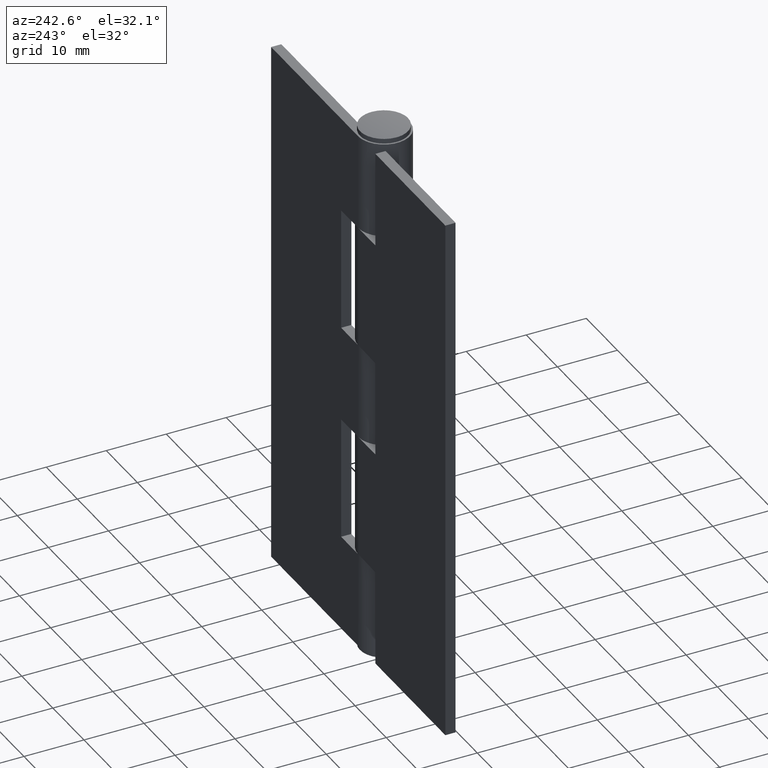
[diagram: clean part render]
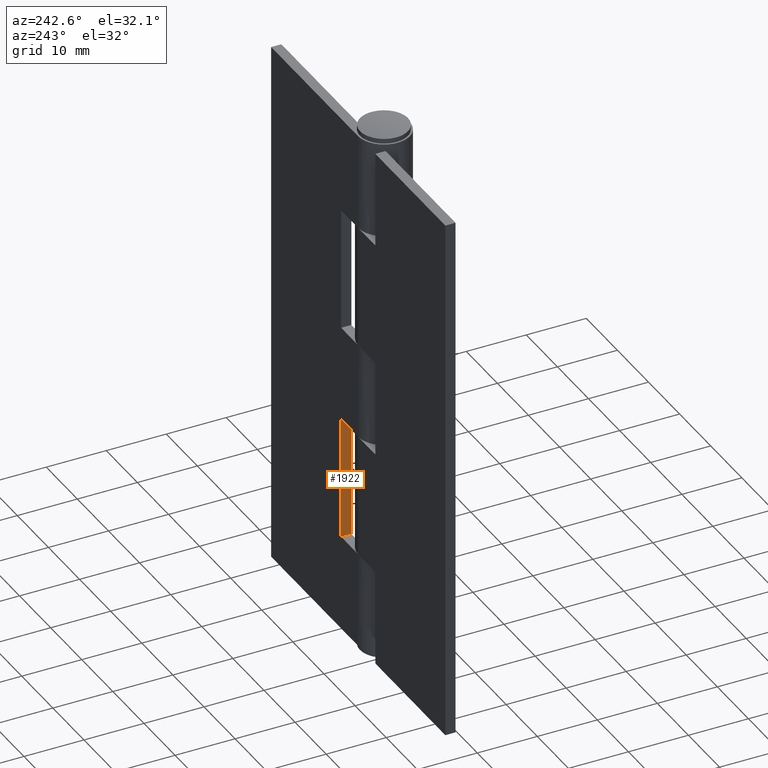
[diagram: same view with one face highlighted and labeled with its STEP entity id]
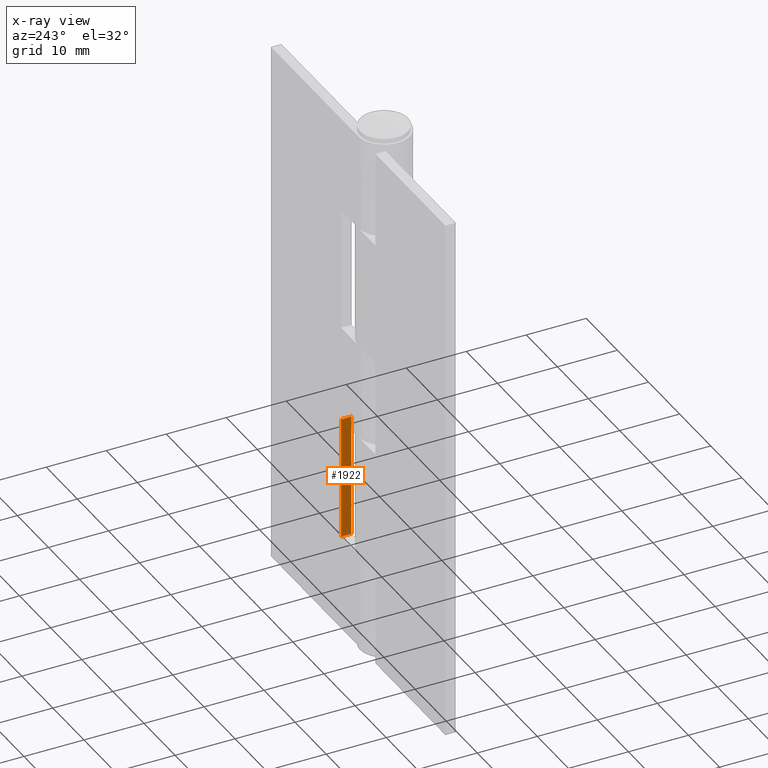
[diagram: x-ray of the same camera — body ghosted, the highlighted face saturated]
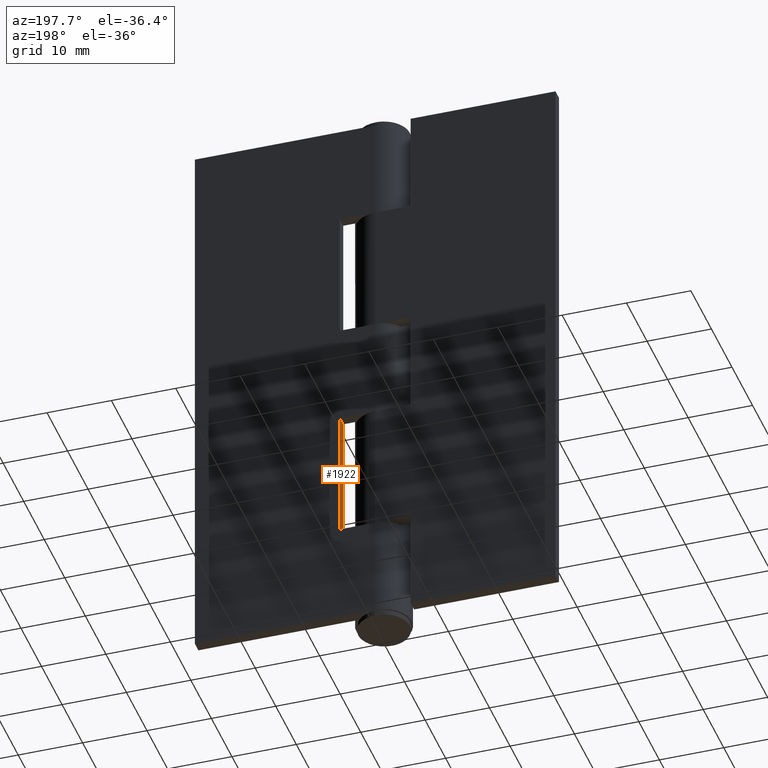
[diagram: same view with one face highlighted and labeled with its STEP entity id]
A machine part, auxiliary view. The second image highlights one B-rep face of the part: STEP entity #1922.
The next image is the same camera in x-ray: the body ghosted, the highlighted face saturated — about 0% of this face is hidden behind the body in this view.
A second angle (auxiliary view) of the same face is appended — the face is thin or edge-on in the first view.
In plain terms, the highlighted face is a freeform B-spline surface patch.
Its self-contained STEP definition (entity closure, byte-faithful):
#1563=CARTESIAN_POINT('',(5.499999999999890,2.599998999999965,36.500000000000000));
#1564=VERTEX_POINT('',#1563);
#1570=CARTESIAN_POINT('',(5.499999999999890,2.599998999999965,16.0));
#1571=VERTEX_POINT('',#1570);
#1572=CARTESIAN_POINT('',(5.499999999999890,2.599998999999965,36.500000000000000));
#1573=CARTESIAN_POINT('',(5.499999999999890,2.599998999999965,16.0));
#1574=QUASI_UNIFORM_CURVE('',1,(#1572,#1573),.UNSPECIFIED.,.F.,.U.);
#1575=EDGE_CURVE('',#1564,#1571,#1574,.T.);
#1846=CARTESIAN_POINT('',(5.499999999999890,4.299999000000000,36.500000000000000));
#1847=VERTEX_POINT('',#1846);
#1853=CARTESIAN_POINT('',(5.499999999999890,2.599998999999965,36.500000000000000));
#1854=CARTESIAN_POINT('',(5.499999999999890,4.299999000000000,36.500000000000000));
#1855=QUASI_UNIFORM_CURVE('',1,(#1853,#1854),.UNSPECIFIED.,.F.,.U.);
#1856=EDGE_CURVE('',#1564,#1847,#1855,.T.);
#1901=CARTESIAN_POINT('',(5.499999999999890,2.515084003294893,14.976025039732979));
#1902=CARTESIAN_POINT('',(5.499999999999890,2.515084003294893,37.523975510119868));
#1903=CARTESIAN_POINT('',(5.499999999999890,4.384914042302625,14.976025039732979));
#1904=CARTESIAN_POINT('',(5.499999999999890,4.384914042302625,37.523975510119868));
#1905=B_SPLINE_SURFACE_WITH_KNOTS('',1,1,((#1901,#1903),(#1902,#1904)),.UNSPECIFIED.,.F.,.F.,.U.,(2,2),(2,2),(0.0,22.547950470386890),(0.0,1.869830039007731),.UNSPECIFIED.);
#1906=ORIENTED_EDGE('',*,*,#1856,.T.);
#1907=CARTESIAN_POINT('',(5.499999999999890,4.299999000000000,16.0));
#1908=VERTEX_POINT('',#1907);
#1909=CARTESIAN_POINT('',(5.499999999999890,4.299999000000000,16.0));
#1910=CARTESIAN_POINT('',(5.499999999999890,4.299999000000000,36.500000000000000));
#1911=QUASI_UNIFORM_CURVE('',1,(#1909,#1910),.UNSPECIFIED.,.F.,.U.);
#1912=EDGE_CURVE('',#1908,#1847,#1911,.T.);
#1913=ORIENTED_EDGE('',*,*,#1912,.F.);
#1914=CARTESIAN_POINT('',(5.499999999999890,2.599998999999965,16.0));
#1915=CARTESIAN_POINT('',(5.499999999999890,4.299999000000000,16.0));
#1916=QUASI_UNIFORM_CURVE('',1,(#1914,#1915),.UNSPECIFIED.,.F.,.U.);
#1917=EDGE_CURVE('',#1571,#1908,#1916,.T.);
#1918=ORIENTED_EDGE('',*,*,#1917,.F.);
#1919=ORIENTED_EDGE('',*,*,#1575,.F.);
#1920=EDGE_LOOP('',(#1906,#1913,#1918,#1919));
#1921=FACE_OUTER_BOUND('',#1920,.T.);
#1922=ADVANCED_FACE('',(#1921),#1905,.T.);